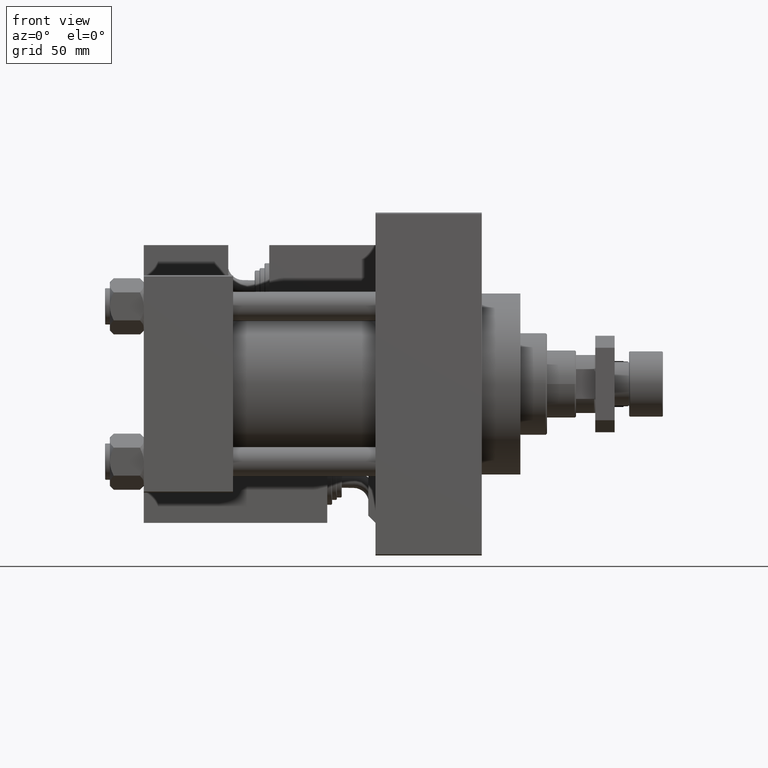
[diagram: clean part render]
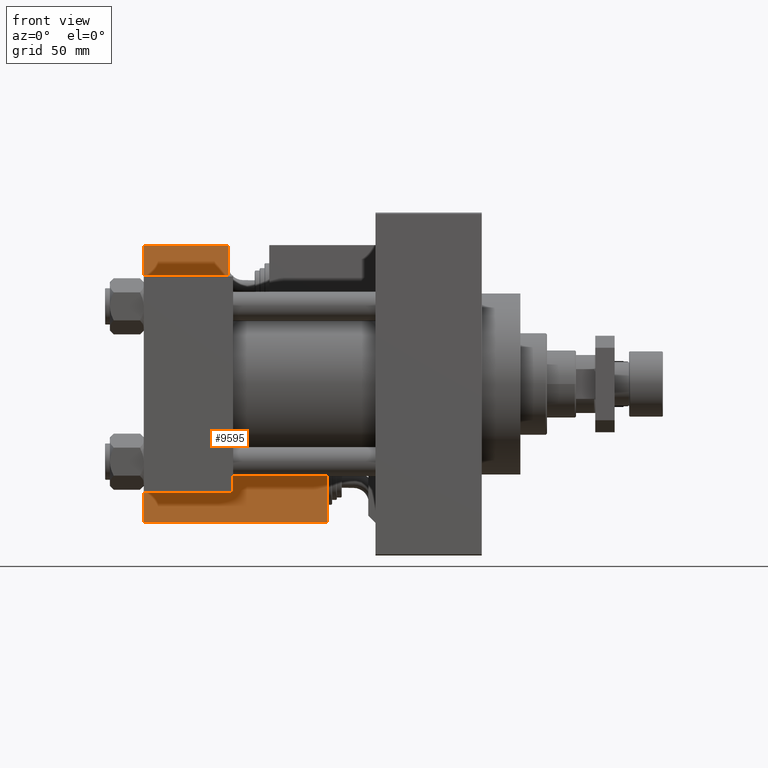
[diagram: same view with one face highlighted and labeled with its STEP entity id]
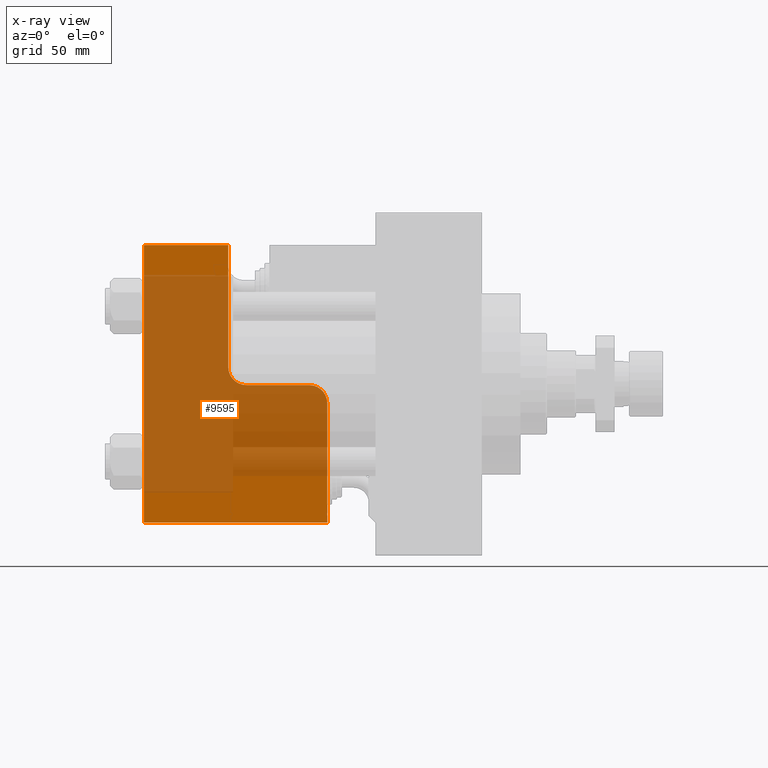
[diagram: x-ray of the same camera — body ghosted, the highlighted face saturated]
A machine part, front view. The second image highlights one B-rep face of the part: STEP entity #9595.
The next image is the same camera in x-ray: the body ghosted, the highlighted face saturated — about 74% of this face is hidden behind the body in this view.
In plain terms, the highlighted planar face has unit normal (0, 1, 0).
Its self-contained STEP definition (entity closure, byte-faithful):
#680 = ORIENTED_EDGE ( 'NONE', *, *, #4476, .F. ) ;
#911 = DIRECTION ( 'NONE',  ( 0.000000000000000000, 0.000000000000000000, 1.000000000000000000 ) ) ;
#1170 = DIRECTION ( 'NONE',  ( 1.000000000000000000, 0.000000000000000000, -0.000000000000000000 ) ) ;
#1924 = CARTESIAN_POINT ( 'NONE',  ( 0.000000000000000000, 115.0000000000000142, 0.000000000000000000 ) ) ;
#2578 = VERTEX_POINT ( 'NONE', #30207 ) ;
#2938 = ORIENTED_EDGE ( 'NONE', *, *, #24610, .T. ) ;
#3459 = VECTOR ( 'NONE', #6054, 1000.000000000000000 ) ;
#4476 = EDGE_CURVE ( 'NONE', #38407, #26946, #37788, .T. ) ;
#6054 = DIRECTION ( 'NONE',  ( -1.000000000000000000, -1.189524669241239460E-15, 0.000000000000000000 ) ) ;
#6594 = CARTESIAN_POINT ( 'NONE',  ( 0.000000000000000000, 115.0000000000000142, 0.000000000000000000 ) ) ;
#7033 = EDGE_CURVE ( 'NONE', #22431, #34988, #35750, .T. ) ;
#7638 = DIRECTION ( 'NONE',  ( -1.000000000000000000, -1.692413147294442765E-16, 0.000000000000000000 ) ) ;
#8019 = AXIS2_PLACEMENT_3D ( 'NONE', #31703, #31191, #48143 ) ;
#9298 = VECTOR ( 'NONE', #38099, 1000.000000000000000 ) ;
#9595 = ADVANCED_FACE ( 'NONE', ( #45979 ), #41933, .F. ) ;
#10390 = VERTEX_POINT ( 'NONE', #11858 ) ;
#10410 = VECTOR ( 'NONE', #47940, 1000.000000000000000 ) ;
#10630 = CIRCLE ( 'NONE', #8019, 7.500000000000000000 ) ;
#11558 = DIRECTION ( 'NONE',  ( 0.000000000000000000, 1.000000000000000000, 0.000000000000000000 ) ) ;
#11858 = CARTESIAN_POINT ( 'NONE',  ( -76.00000000000005684, 49.50000000000008527, 0.000000000000000000 ) ) ;
#11971 = EDGE_CURVE ( 'NONE', #48248, #38407, #30918, .T. ) ;
#13792 = CARTESIAN_POINT ( 'NONE',  ( -42.49999999999997868, 57.00000000000009237, 0.000000000000000000 ) ) ;
#15766 = DIRECTION ( 'NONE',  ( 1.000000000000000000, 0.000000000000000000, 0.000000000000000000 ) ) ;
#15800 = LINE ( 'NONE', #31503, #10410 ) ;
#19679 = LINE ( 'NONE', #32102, #43612 ) ;
#19911 = EDGE_CURVE ( 'NONE', #10390, #42178, #15800, .T. ) ;
#20832 = CARTESIAN_POINT ( 'NONE',  ( -76.00000000000004263, 0.000000000000000000, 0.000000000000000000 ) ) ;
#22431 = VERTEX_POINT ( 'NONE', #13792 ) ;
#24610 = EDGE_CURVE ( 'NONE', #22431, #26946, #39817, .T. ) ;
#26946 = VERTEX_POINT ( 'NONE', #35142 ) ;
#27750 = EDGE_CURVE ( 'NONE', #10390, #34988, #10630, .T. ) ;
#28436 = CARTESIAN_POINT ( 'NONE',  ( -68.50000000000005684, 57.00000000000008527, 0.000000000000000000 ) ) ;
#28894 = DIRECTION ( 'NONE',  ( 2.392722035830083409E-16, -1.000000000000000000, 0.000000000000000000 ) ) ;
#29973 = CARTESIAN_POINT ( 'NONE',  ( -76.00000000000004263, 0.000000000000000000, 0.000000000000000000 ) ) ;
#30207 = CARTESIAN_POINT ( 'NONE',  ( 0.000000000000000000, 0.000000000000000000, 0.000000000000000000 ) ) ;
#30486 = ORIENTED_EDGE ( 'NONE', *, *, #7033, .F. ) ;
#30918 = LINE ( 'NONE', #6594, #3459 ) ;
#31020 = ORIENTED_EDGE ( 'NONE', *, *, #37210, .F. ) ;
#31191 = DIRECTION ( 'NONE',  ( -0.000000000000000000, -0.000000000000000000, -1.000000000000000000 ) ) ;
#31503 = CARTESIAN_POINT ( 'NONE',  ( -76.00000000000005684, 57.00000000000008527, 0.000000000000000000 ) ) ;
#31703 = CARTESIAN_POINT ( 'NONE',  ( -68.50000000000005684, 49.50000000000008527, 0.000000000000000000 ) ) ;
#32102 = CARTESIAN_POINT ( 'NONE',  ( 0.000000000000000000, 0.000000000000000000, 0.000000000000000000 ) ) ;
#34354 = EDGE_LOOP ( 'NONE', ( #46636, #47577, #30486, #2938, #680, #42034, #31020, #37346 ) ) ;
#34988 = VERTEX_POINT ( 'NONE', #28436 ) ;
#35142 = CARTESIAN_POINT ( 'NONE',  ( -34.99999999999997868, 64.50000000000008527, 0.000000000000000000 ) ) ;
#35750 = LINE ( 'NONE', #36011, #42209 ) ;
#35763 = DIRECTION ( 'NONE',  ( 0.000000000000000000, 0.000000000000000000, 1.000000000000000000 ) ) ;
#36011 = CARTESIAN_POINT ( 'NONE',  ( -34.99999999999997868, 57.00000000000009237, 0.000000000000000000 ) ) ;
#37210 = EDGE_CURVE ( 'NONE', #2578, #48248, #19679, .T. ) ;
#37346 = ORIENTED_EDGE ( 'NONE', *, *, #40128, .F. ) ;
#37788 = LINE ( 'NONE', #41022, #40396 ) ;
#37900 = CARTESIAN_POINT ( 'NONE',  ( 0.000000000000000000, 0.000000000000000000, 0.000000000000000000 ) ) ;
#38099 = DIRECTION ( 'NONE',  ( 1.000000000000000000, 0.000000000000000000, 0.000000000000000000 ) ) ;
#38407 = VERTEX_POINT ( 'NONE', #41196 ) ;
#38735 = AXIS2_PLACEMENT_3D ( 'NONE', #37900, #911, #1170 ) ;
#39817 = CIRCLE ( 'NONE', #40649, 7.500000000000000000 ) ;
#40128 = EDGE_CURVE ( 'NONE', #42178, #2578, #46452, .T. ) ;
#40396 = VECTOR ( 'NONE', #28894, 1000.000000000000000 ) ;
#40649 = AXIS2_PLACEMENT_3D ( 'NONE', #49216, #35763, #15766 ) ;
#41022 = CARTESIAN_POINT ( 'NONE',  ( -34.99999999999999289, 114.9999999999999716, 0.000000000000000000 ) ) ;
#41196 = CARTESIAN_POINT ( 'NONE',  ( -34.99999999999999289, 114.9999999999999716, 0.000000000000000000 ) ) ;
#41933 = PLANE ( 'NONE',  #38735 ) ;
#42034 = ORIENTED_EDGE ( 'NONE', *, *, #11971, .F. ) ;
#42178 = VERTEX_POINT ( 'NONE', #29973 ) ;
#42209 = VECTOR ( 'NONE', #7638, 1000.000000000000000 ) ;
#43612 = VECTOR ( 'NONE', #11558, 1000.000000000000000 ) ;
#45979 = FACE_OUTER_BOUND ( 'NONE', #34354, .T. ) ;
#46452 = LINE ( 'NONE', #20832, #9298 ) ;
#46636 = ORIENTED_EDGE ( 'NONE', *, *, #19911, .F. ) ;
#47577 = ORIENTED_EDGE ( 'NONE', *, *, #27750, .T. ) ;
#47940 = DIRECTION ( 'NONE',  ( 2.434699615406041273E-16, -1.000000000000000000, 0.000000000000000000 ) ) ;
#48143 = DIRECTION ( 'NONE',  ( 1.000000000000000000, 0.000000000000000000, 0.000000000000000000 ) ) ;
#48248 = VERTEX_POINT ( 'NONE', #1924 ) ;
#49216 = CARTESIAN_POINT ( 'NONE',  ( -42.49999999999997868, 64.50000000000008527, 0.000000000000000000 ) ) ;